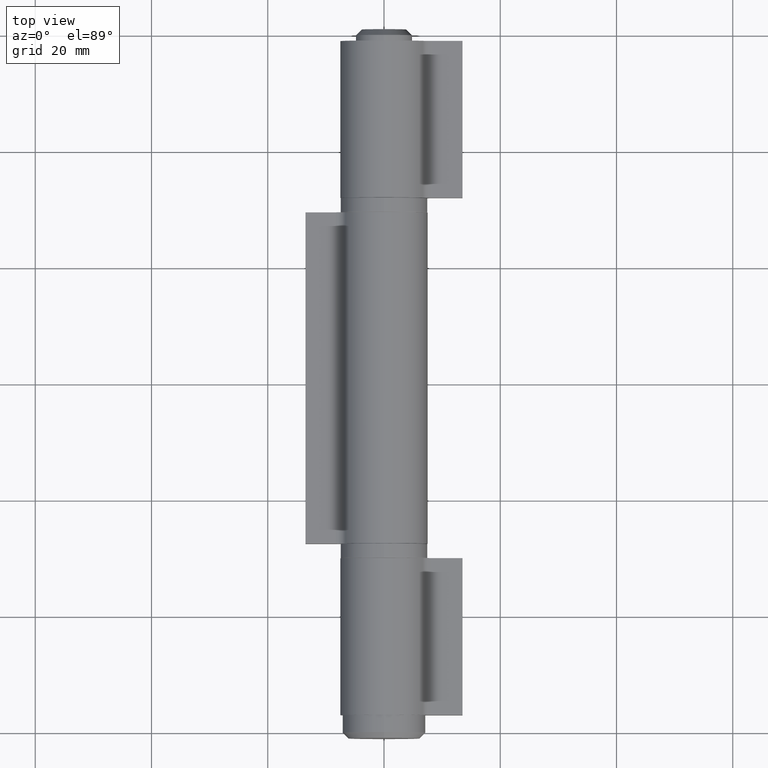
[diagram: clean part render]
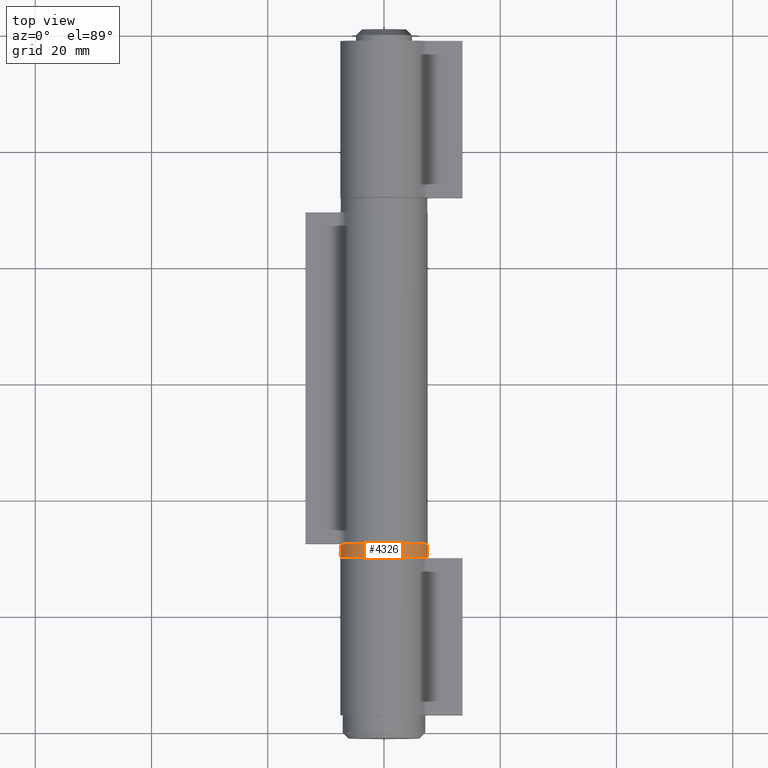
[diagram: same view with one face highlighted and labeled with its STEP entity id]
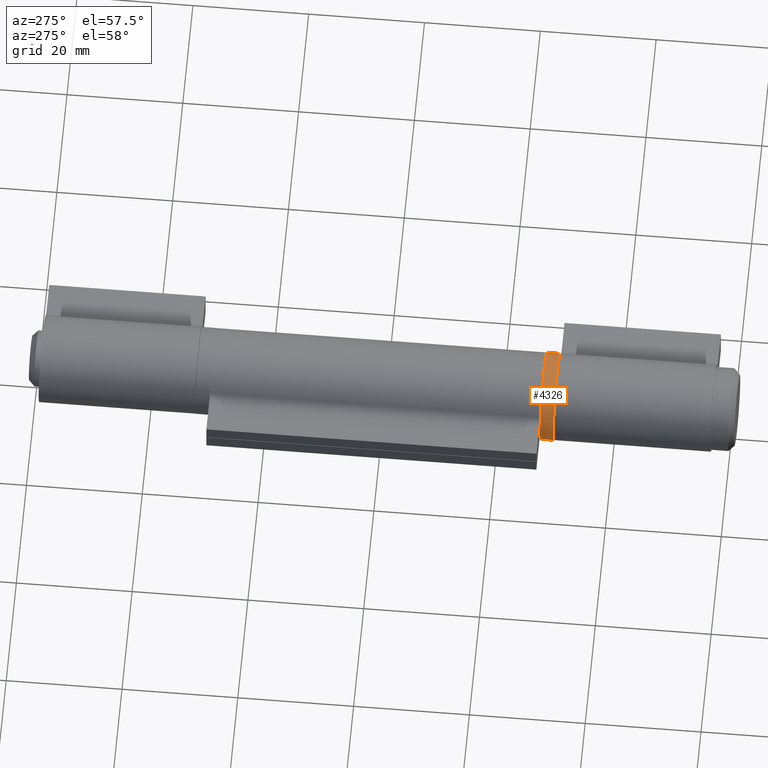
[diagram: same view with one face highlighted and labeled with its STEP entity id]
A machine part, top view. The second image highlights one B-rep face of the part: STEP entity #4326.
A second angle (auxiliary view) of the same face is appended — the face is thin or edge-on in the first view.
In plain terms, the highlighted cylindrical surface (bore or boss wall) has radius 7.5 mm, axis along (-0, -1, -0).
Its self-contained STEP definition (entity closure, byte-faithful):
#98 = EDGE_LOOP ( 'NONE', ( #6802 ) ) ;
#1006 = DIRECTION ( 'NONE',  ( -0.000000000000000000, -1.000000000000000000, -0.000000000000000000 ) ) ;
#1089 = CIRCLE ( 'NONE', #5492, 7.500000000000000000 ) ;
#2340 = AXIS2_PLACEMENT_3D ( 'NONE', #7539, #2903, #3666 ) ;
#2509 = VERTEX_POINT ( 'NONE', #10937 ) ;
#2783 = CARTESIAN_POINT ( 'NONE',  ( 0.000000000000000000, 1.149999999999999911, 0.000000000000000000 ) ) ;
#2903 = DIRECTION ( 'NONE',  ( 0.000000000000000000, 1.000000000000000000, 0.000000000000000000 ) ) ;
#3647 = DIRECTION ( 'NONE',  ( 0.000000000000000000, 0.000000000000000000, 1.000000000000000000 ) ) ;
#3666 = DIRECTION ( 'NONE',  ( 0.000000000000000000, 0.000000000000000000, 1.000000000000000000 ) ) ;
#3804 = EDGE_LOOP ( 'NONE', ( #6964 ) ) ;
#4326 = ADVANCED_FACE ( 'NONE', ( #9301, #4768 ), #6228, .T. ) ;
#4768 = FACE_OUTER_BOUND ( 'NONE', #3804, .T. ) ;
#5492 = AXIS2_PLACEMENT_3D ( 'NONE', #2783, #8343, #3647 ) ;
#5775 = AXIS2_PLACEMENT_3D ( 'NONE', #6484, #1006, #7417 ) ;
#6228 = CYLINDRICAL_SURFACE ( 'NONE', #5775, 7.500000000000000000 ) ;
#6484 = CARTESIAN_POINT ( 'NONE',  ( 0.000000000000000000, 1.250000000000000000, 0.000000000000000000 ) ) ;
#6802 = ORIENTED_EDGE ( 'NONE', *, *, #7026, .T. ) ;
#6964 = ORIENTED_EDGE ( 'NONE', *, *, #9818, .T. ) ;
#7026 = EDGE_CURVE ( 'NONE', #7258, #7258, #7048, .T. ) ;
#7048 = CIRCLE ( 'NONE', #2340, 7.500000000000000000 ) ;
#7142 = CARTESIAN_POINT ( 'NONE',  ( 0.000000000000000000, -1.150000000000000133, 7.500000000000000000 ) ) ;
#7258 = VERTEX_POINT ( 'NONE', #7142 ) ;
#7417 = DIRECTION ( 'NONE',  ( 0.000000000000000000, 0.000000000000000000, -1.000000000000000000 ) ) ;
#7539 = CARTESIAN_POINT ( 'NONE',  ( 0.000000000000000000, -1.150000000000000133, 0.000000000000000000 ) ) ;
#8343 = DIRECTION ( 'NONE',  ( -0.000000000000000000, -1.000000000000000000, -0.000000000000000000 ) ) ;
#9301 = FACE_OUTER_BOUND ( 'NONE', #98, .T. ) ;
#9818 = EDGE_CURVE ( 'NONE', #2509, #2509, #1089, .T. ) ;
#10937 = CARTESIAN_POINT ( 'NONE',  ( 0.000000000000000000, 1.149999999999999911, 7.500000000000000000 ) ) ;